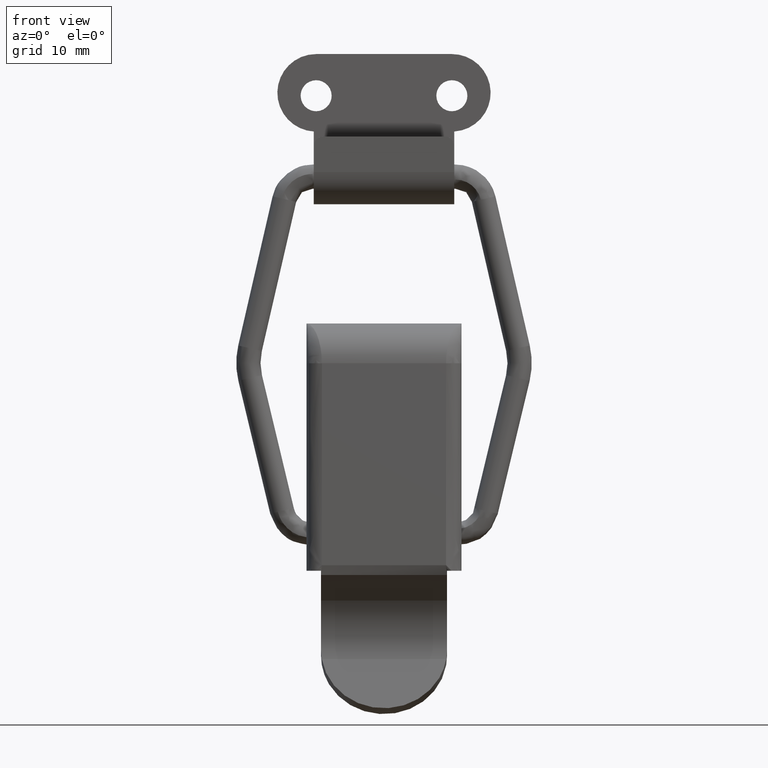
[diagram: clean part render]
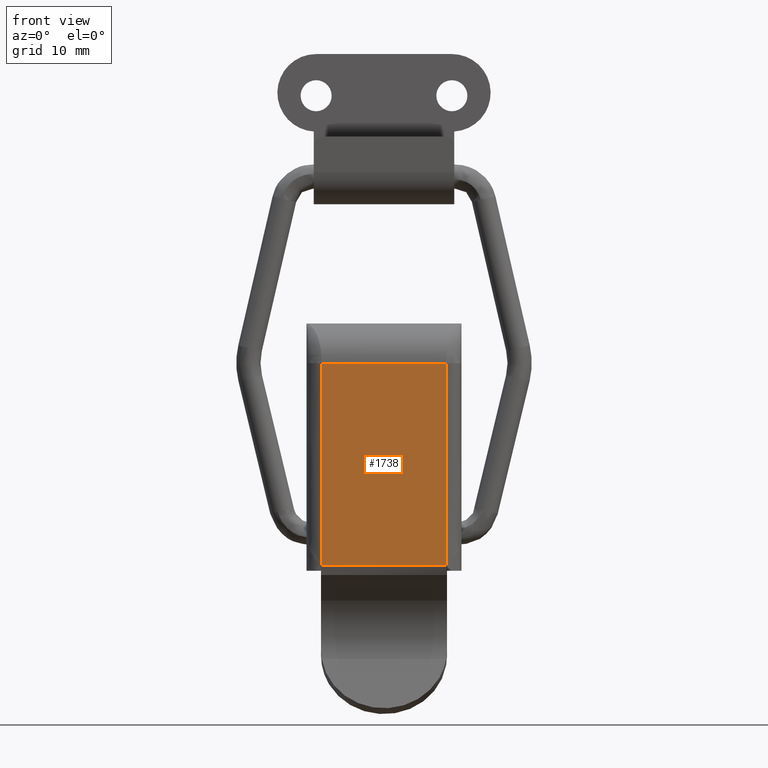
[diagram: same view with one face highlighted and labeled with its STEP entity id]
A machine part, front view. The second image highlights one B-rep face of the part: STEP entity #1738.
In plain terms, the highlighted face is a freeform B-spline surface patch.
Its self-contained STEP definition (entity closure, byte-faithful):
#574=CARTESIAN_POINT('',(6.399999999995410,-7.500000000000090,-3.437147276354425));
#575=VERTEX_POINT('',#574);
#585=CARTESIAN_POINT('',(-6.400000000004620,-7.500000000000090,-3.437147276354430));
#586=VERTEX_POINT('',#585);
#587=CARTESIAN_POINT('',(-6.400000000004620,-7.500000000000090,-3.437147276354430));
#588=CARTESIAN_POINT('',(6.399999999995410,-7.500000000000090,-3.437147276354425));
#589=QUASI_UNIFORM_CURVE('',1,(#587,#588),.UNSPECIFIED.,.F.,.U.);
#590=EDGE_CURVE('',#586,#575,#589,.T.);
#681=CARTESIAN_POINT('',(6.399999999995410,-7.500000000000090,17.399999999999999));
#682=VERTEX_POINT('',#681);
#736=CARTESIAN_POINT('',(6.399999999995410,-7.500000000000090,-3.437147276354425));
#737=CARTESIAN_POINT('',(6.399999999995410,-7.500000000000090,17.399999999999999));
#738=QUASI_UNIFORM_CURVE('',1,(#736,#737),.UNSPECIFIED.,.F.,.U.);
#739=EDGE_CURVE('',#575,#682,#738,.T.);
#792=CARTESIAN_POINT('',(-6.400000000004620,-7.500000000000090,17.399999999999999));
#793=VERTEX_POINT('',#792);
#875=CARTESIAN_POINT('',(-6.400000000004620,-7.500000000000090,17.399999999999999));
#876=CARTESIAN_POINT('',(-6.400000000004620,-7.500000000000090,-3.437147276354430));
#877=QUASI_UNIFORM_CURVE('',1,(#875,#876),.UNSPECIFIED.,.F.,.U.);
#878=EDGE_CURVE('',#793,#586,#877,.T.);
#1194=CARTESIAN_POINT('',(-6.400000000004620,-7.500000000000090,17.399999999999999));
#1195=CARTESIAN_POINT('',(6.399999999995410,-7.500000000000090,17.399999999999999));
#1196=QUASI_UNIFORM_CURVE('',1,(#1194,#1195),.UNSPECIFIED.,.F.,.U.);
#1197=EDGE_CURVE('',#793,#682,#1196,.T.);
#1727=CARTESIAN_POINT('',(-7.039360095352980,-7.500000000000090,18.440815074859010));
#1728=CARTESIAN_POINT('',(-7.039360095352980,-7.500000000000090,-4.477963282706510));
#1729=CARTESIAN_POINT('',(7.039360324225608,-7.500000000000089,18.440815074859010));
#1730=CARTESIAN_POINT('',(7.039360324225608,-7.500000000000089,-4.477963282706510));
#1731=B_SPLINE_SURFACE_WITH_KNOTS('',1,1,((#1727,#1729),(#1728,#1730)),.UNSPECIFIED.,.F.,.F.,.U.,(2,2),(2,2),(0.0,22.918778357565522),(0.0,14.078720419578589),.UNSPECIFIED.);
#1732=ORIENTED_EDGE('',*,*,#878,.T.);
#1733=ORIENTED_EDGE('',*,*,#590,.T.);
#1734=ORIENTED_EDGE('',*,*,#739,.T.);
#1735=ORIENTED_EDGE('',*,*,#1197,.F.);
#1736=EDGE_LOOP('',(#1732,#1733,#1734,#1735));
#1737=FACE_OUTER_BOUND('',#1736,.T.);
#1738=ADVANCED_FACE('',(#1737),#1731,.T.);